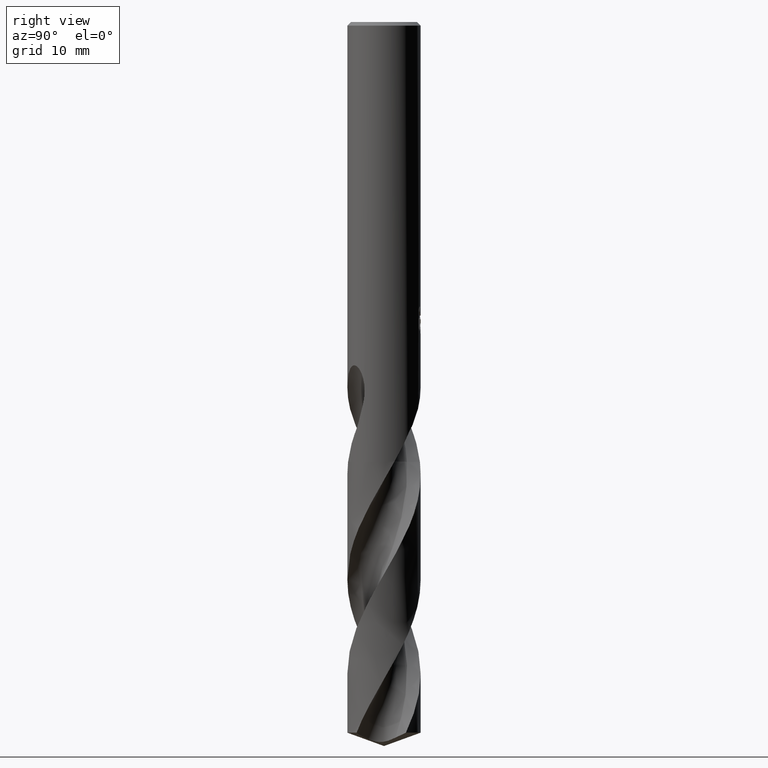
[diagram: clean part render]
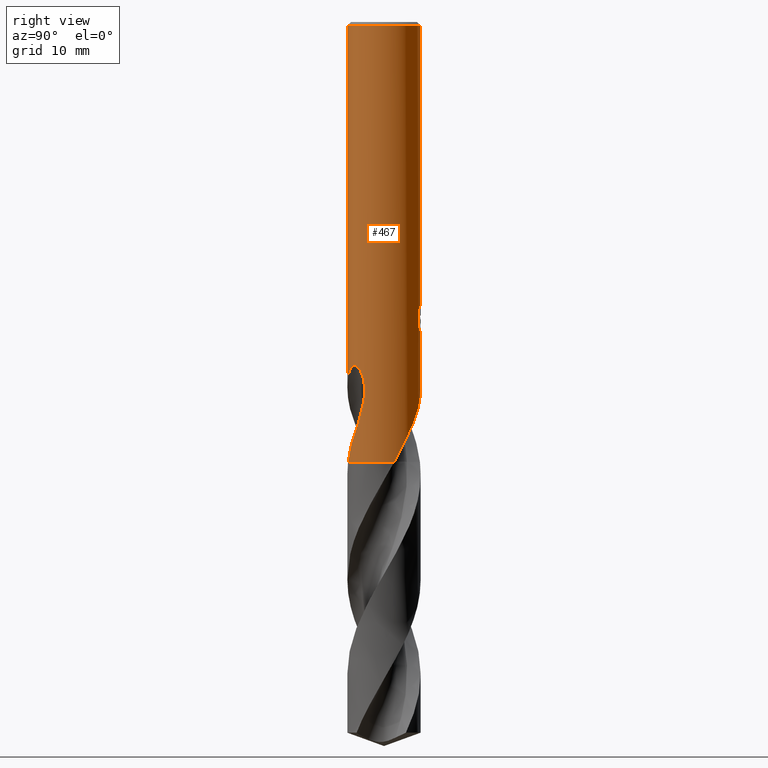
[diagram: same view with one face highlighted and labeled with its STEP entity id]
A machine part, right view. The second image highlights one B-rep face of the part: STEP entity #467.
In plain terms, the highlighted cylindrical surface (partial cylindrical patch) has radius 4 mm, axis along (-0, -0, 1).
Its self-contained STEP definition (entity closure, byte-faithful):
#269=EDGE_CURVE('',#717,#519,#760,.T.);
#271=VERTEX_POINT('',#762);
#281=VERTEX_POINT('',#773);
#313=VERTEX_POINT('',#808);
#323=VERTEX_POINT('',#820);
#337=EDGE_CURVE('',#561,#519,#834,.T.);
#357=EDGE_CURVE('',#631,#405,#854,.T.);
#359=VERTEX_POINT('',#856);
#383=EDGE_CURVE('',#439,#281,#883,.T.);
#405=VERTEX_POINT('',#907);
#431=EDGE_CURVE('',#271,#405,#935,.T.);
#439=VERTEX_POINT('',#944);
#459=EDGE_CURVE('',#561,#605,#969,.T.);
#467=ADVANCED_FACE('',(#977),#978,.T.);
#491=VERTEX_POINT('',#1007);
#509=VERTEX_POINT('',#1025);
#519=VERTEX_POINT('',#1035);
#541=VERTEX_POINT('',#1058);
#543=EDGE_CURVE('',#613,#359,#1060,.T.);
#553=VERTEX_POINT('',#1070);
#561=VERTEX_POINT('',#1078);
#581=EDGE_CURVE('',#313,#491,#1099,.T.);
#583=EDGE_CURVE('',#605,#271,#1101,.T.);
#589=EDGE_CURVE('',#359,#553,#1107,.T.);
#605=VERTEX_POINT('',#1124);
#613=VERTEX_POINT('',#1132);
#617=EDGE_CURVE('',#313,#509,#1137,.T.);
#631=VERTEX_POINT('',#1152);
#641=EDGE_CURVE('',#541,#491,#1162,.T.);
#687=EDGE_CURVE('',#509,#439,#1214,.T.);
#695=EDGE_CURVE('',#281,#323,#1222,.T.);
#713=EDGE_CURVE('',#323,#613,#1244,.T.);
#717=VERTEX_POINT('',#1249);
#719=EDGE_CURVE('',#717,#553,#1251,.T.);
#721=EDGE_CURVE('',#631,#541,#1253,.T.);
#760=CIRCLE('',#1288,4.0);
#762=CARTESIAN_POINT('',(2.78030937116489,-2.87573987012259,-44.053));
#773=CARTESIAN_POINT('',(0.873560781758956,3.90344611344549,-33.7587351791531));
#808=CARTESIAN_POINT('',(-6.37761657961682E-016,4.0,-34.0310253601033));
#820=CARTESIAN_POINT('',(1.33721006514658,3.76986329217263,-33.2901657003257));
#834=LINE('',#2195,#2196);
#854=CIRCLE('',#2234,4.0);
#856=CARTESIAN_POINT('',(0.799431726384364,3.91929954390451,-31.000000276873));
#883=LINE('',#2883,#2884);
#907=CARTESIAN_POINT('',(0.793918548138525,-3.92042004623505,-48.0));
#935=B_SPLINE_CURVE_WITH_KNOTS('',3,(#3264,#3265,#3266,#3267,#3268,#3269,#3270,#3271,#3272,#3273),.UNSPECIFIED.,.F.,.F.,(4,2,2,2,4),(0.0,1.08499727493332,2.08081364474234,3.14812656412866,4.20703552842355),.UNSPECIFIED.);
#944=CARTESIAN_POINT('',(0.873560781758957,3.90344611344549,-32.3198931596091));
#969=B_SPLINE_CURVE_WITH_KNOTS('',3,(#3611,#3612,#3613,#3614,#3615,#3616,#3617,#3618,#3619,#3620,#3621,#3622,#3623,#3624,#3625,#3626,#3627,#3628,#3629,#3630,#3631,#3632,#3633,#3634,#3635,#3636,#3637,#3638,#3639,#3640),.UNSPECIFIED.,.F.,.F.,(4,2,2,2,2,2,2,2,2,2,2,2,2,2,4),(0.0,1.9597762407695,3.02985967370596,3.99908599318602,5.1250937722548,6.47768674139874,7.65000215056726,8.18125540149219,8.56953673186899,8.93696441781943,9.40306833899536,10.0849972789282,11.0544394482058,11.6888355435201,12.3555427460073),.UNSPECIFIED.);
#977=FACE_OUTER_BOUND('',#3675,.T.);
#978=CYLINDRICAL_SURFACE('',#3676,4.0);
#1007=CARTESIAN_POINT('',(-1.18618515617536E-012,4.0,-39.8010886237942));
#1025=CARTESIAN_POINT('',(0.29010312703583,3.98946615171554,-33.9998328990228));
#1035=CARTESIAN_POINT('',(4.89842541528951E-016,-4.0,-0.399999999999999));
#1058=CARTESIAN_POINT('',(2.54885976013372,3.08274454393663,-44.053));
#1060=B_SPLINE_CURVE_WITH_KNOTS('',3,(#4098,#4099,#4100,#4101,#4102,#4103,#4104,#4105,#4106,#4107),.UNSPECIFIED.,.F.,.F.,(4,2,2,2,4),(0.621618550720989,0.932427826081483,1.24323710144198,1.55341597198189,1.8635948425218),.UNSPECIFIED.);
#1070=CARTESIAN_POINT('',(0.0,4.0,-32.0232688117743));
#1078=CARTESIAN_POINT('',(1.18285448710148E-012,-4.0,-39.8010886237942));
#1099=LINE('',#4656,#4657);
#1101=B_SPLINE_CURVE_WITH_KNOTS('',3,(#4660,#4661,#4662,#4663),.UNSPECIFIED.,.F.,.F.,(4,4),(0.0,2.29887959846367),.UNSPECIFIED.);
#1107=B_SPLINE_CURVE_WITH_KNOTS('',3,(#4670,#4671,#4672,#4673,#4674,#4675,#4676,#4677,#4678,#4679,#4680,#4681,#4682,#4683,#4684,#4685,#4686,#4687,#4688,#4689,#4690,#4691,#4692,#4693,#4694,#4695,#4696),.UNSPECIFIED.,.F.,.F.,(4,2,3,2,2,2,2,2,2,2,2,2,4),(-0.543018145553855,-0.271509072776928,0.0,0.271509072776927,0.543018145553855,0.815414280910791,1.08781041626773,1.35870467547365,1.62959893467958,1.90093601549038,2.17227309630118,2.44361017711198,2.71494725792278),.UNSPECIFIED.);
#1124=CARTESIAN_POINT('',(3.25456865325919,-2.32546401417495,-41.862679091506));
#1132=CARTESIAN_POINT('',(1.33721006514658,3.76986329217263,-31.5150484364821));
#1137=B_SPLINE_CURVE_WITH_KNOTS('',3,(#5552,#5553,#5554,#5555,#5556,#5557,#5558,#5559,#5560,#5561,#5562,#5563,#5564,#5565,#5566,#5567),.UNSPECIFIED.,.F.,.F.,(4,2,2,2,2,2,2,4),(5.59330412183837,6.21519943861119,6.52611580040833,6.83703216220547,7.14794852400261,7.45886488579976,7.76904377517712,8.07922266455448),.UNSPECIFIED.);
#1152=CARTESIAN_POINT('',(3.83967446936676,1.12111550220887,-48.0));
#1162=B_SPLINE_CURVE_WITH_KNOTS('',3,(#5756,#5757,#5758,#5759,#5760,#5761,#5762,#5763,#5764,#5765,#5766,#5767,#5768,#5769,#5770,#5771,#5772,#5773,#5774,#5775,#5776,#5777,#5778,#5779,#5780,#5781,#5782,#5783,#5784,#5785),.UNSPECIFIED.,.F.,.F.,(4,2,2,2,2,2,2,2,2,2,2,2,2,2,4),(0.0,1.95977624076947,3.02985967370601,3.99908599318628,5.12509377225497,6.47768674139893,7.65000215056745,8.18125540149243,8.56953673186918,8.93696441781958,9.40306833899562,10.0849972789289,11.0544394482072,11.6888355435218,12.3555427460094),.UNSPECIFIED.);
#1214=ELLIPSE('',#6978,12.1919782934791,4.0);
#1222=B_SPLINE_CURVE_WITH_KNOTS('',3,(#6991,#6992,#6993,#6994,#6995,#6996,#6997,#6998,#6999,#7000),.UNSPECIFIED.,.F.,.F.,(4,2,2,2,4),(8.07922159159579,8.38940045176896,8.69957931194214,9.01038857642139,9.32119784090064),.UNSPECIFIED.);
#1244=LINE('',#7092,#7093);
#1249=CARTESIAN_POINT('',(0.0,4.0,-0.399999999999999));
#1251=LINE('',#7101,#7102);
#1253=B_SPLINE_CURVE_WITH_KNOTS('',3,(#7105,#7106,#7107,#7108,#7109,#7110,#7111,#7112,#7113,#7114),.UNSPECIFIED.,.F.,.F.,(4,2,2,2,4),(0.0,2.93691293894587,4.38562282436832,6.48194882393094,10.8463161017946),.UNSPECIFIED.);
#1288=AXIS2_PLACEMENT_3D('',#7677,#7678,#7679);
#2195=CARTESIAN_POINT('',(4.89842541528951E-016,-4.0,-44.0));
#2196=VECTOR('',#7739,1.0);
#2234=AXIS2_PLACEMENT_3D('',#7744,#7745,#7746);
#2883=CARTESIAN_POINT('',(0.873560781758957,3.90344611344549,-33.0393141693811));
#2884=VECTOR('',#7774,1.0);
#3264=CARTESIAN_POINT('',(2.78030937116489,-2.87573987012259,-44.053));
#3265=CARTESIAN_POINT('',(2.65679097855428,-2.99515934476091,-44.3712519701412));
#3266=CARTESIAN_POINT('',(2.52403134467777,-3.10886386544909,-44.6838478335225));
#3267=CARTESIAN_POINT('',(2.23196085345949,-3.32392556564798,-45.2998001272732));
#3268=CARTESIAN_POINT('',(2.08493976485533,-3.41873333931412,-45.5912279914404));
#3269=CARTESIAN_POINT('',(1.74639804127306,-3.60415990677305,-46.258286404128));
#3270=CARTESIAN_POINT('',(1.56333247109181,-3.68740490220172,-46.6081532709542));
#3271=CARTESIAN_POINT('',(1.1846433942604,-3.82582550709113,-47.3067626664116));
#3272=CARTESIAN_POINT('',(0.991065521919932,-3.88049609998731,-47.6525083025429));
#3273=CARTESIAN_POINT('',(0.793918548138527,-3.92042004623505,-48.0));
#3611=CARTESIAN_POINT('',(-2.54885976013373,-3.08274454393663,-44.053));
#3612=CARTESIAN_POINT('',(-2.28500523660261,-3.30090345005828,-43.4966417767988));
#3613=CARTESIAN_POINT('',(-1.98163231588754,-3.49483155995579,-42.977936421169));
#3614=CARTESIAN_POINT('',(-1.45264038690853,-3.73253113273964,-42.1114036522165));
#3615=CARTESIAN_POINT('',(-1.26228426683797,-3.80090830680973,-41.8065283302373));
#3616=CARTESIAN_POINT('',(-0.893778878987868,-3.90310035133814,-41.2163687713546));
#3617=CARTESIAN_POINT('',(-0.717274980064561,-3.93920455800776,-40.9338353559214));
#3618=CARTESIAN_POINT('',(-0.335218398320563,-3.99131183045807,-40.3249008687613));
#3619=CARTESIAN_POINT('',(-0.12647439608519,-4.00354517408276,-39.9937333591077));
#3620=CARTESIAN_POINT('',(0.337092631504076,-3.99379417253619,-39.2852567198373));
#3621=CARTESIAN_POINT('',(0.611941054861158,-3.96363461880696,-38.8821257542007));
#3622=CARTESIAN_POINT('',(1.14195068256936,-3.84183599193105,-38.2173906398542));
#3623=CARTESIAN_POINT('',(1.43518376737336,-3.74904084478621,-37.8930259656217));
#3624=CARTESIAN_POINT('',(1.87898919238024,-3.53454780533532,-37.5892910671245));
#3625=CARTESIAN_POINT('',(2.02589175203401,-3.45357173492743,-37.5142260075858));
#3626=CARTESIAN_POINT('',(2.28329880223289,-3.28684001880263,-37.4565626198684));
#3627=CARTESIAN_POINT('',(2.38887588461982,-3.21090914700582,-37.4554859280565));
#3628=CARTESIAN_POINT('',(2.58551889986571,-3.05450740730474,-37.5059535003711));
#3629=CARTESIAN_POINT('',(2.67152074136919,-2.9789684922271,-37.5532713078944));
#3630=CARTESIAN_POINT('',(2.8465335331701,-2.81343086569157,-37.7013232644774));
#3631=CARTESIAN_POINT('',(2.92750237022739,-2.72764511666502,-37.8106329899809));
#3632=CARTESIAN_POINT('',(3.09335272716445,-2.54032566393318,-38.1099569518953));
#3633=CARTESIAN_POINT('',(3.17262589307932,-2.43831682967145,-38.3319668721969));
#3634=CARTESIAN_POINT('',(3.32169614375787,-2.233484397464,-38.953125946192));
#3635=CARTESIAN_POINT('',(3.37558848211908,-2.14623565430961,-39.3955071231947));
#3636=CARTESIAN_POINT('',(3.40226299691169,-2.10356902640446,-40.21424616535));
#3637=CARTESIAN_POINT('',(3.39599104218287,-2.1139685132873,-40.5403087544243));
#3638=CARTESIAN_POINT('',(3.35169145718829,-2.18356392775092,-41.2020529092011));
#3639=CARTESIAN_POINT('',(3.31213718412786,-2.24489483106254,-41.5352437340999));
#3640=CARTESIAN_POINT('',(3.25456865325918,-2.32546401417496,-41.862679091506));
#3675=EDGE_LOOP('',(#7888,#7889,#7890,#7891,#7892,#7893,#7894,#7895,#7896,#7897,#7898,#7899,#7900,#7901,#7902,#7903,#7904));
#3676=AXIS2_PLACEMENT_3D('',#7905,#7906,#7907);
#4098=CARTESIAN_POINT('',(1.47492143493287,3.71814560779639,-31.7759604553563));
#4099=CARTESIAN_POINT('',(1.43317985453682,3.73470372211652,-31.6758249567768));
#4100=CARTESIAN_POINT('',(1.38139934199221,3.7544274523428,-31.5801212011595));
#4101=CARTESIAN_POINT('',(1.26216864159784,3.79617175011376,-31.4033868968692));
#4102=CARTESIAN_POINT('',(1.1947060468711,3.8181497487877,-31.3223546663791));
#4103=CARTESIAN_POINT('',(1.0513319169546,3.86008660392055,-31.1790629248092));
#4104=CARTESIAN_POINT('',(0.970367433401024,3.88157055479408,-31.1117010969221));
#4105=CARTESIAN_POINT('',(0.793686081906958,3.92151314302242,-30.9925943353462));
#4106=CARTESIAN_POINT('',(0.697967348067752,3.93993643158254,-30.9408403180509));
#4107=CARTESIAN_POINT('',(0.597825544213158,3.95507327601983,-30.8991318677171));
#4656=CARTESIAN_POINT('',(-4.89842541528951E-016,4.0,-44.0));
#4657=VECTOR('',#8013,1.0);
#4660=CARTESIAN_POINT('',(3.2545686533118,-2.32546401410131,-41.862679091535));
#4661=CARTESIAN_POINT('',(3.12561195037748,-2.50594345410102,-42.5961657022424));
#4662=CARTESIAN_POINT('',(2.9701846549125,-2.69216553635172,-43.3340172614407));
#4663=CARTESIAN_POINT('',(2.78030937116489,-2.87573987012259,-44.053));
#4670=CARTESIAN_POINT('',(0.665279195004375,3.9442874632428,-30.8137529884524));
#4671=CARTESIAN_POINT('',(0.72877088492158,3.9335783806135,-30.8773526603125));
#4672=CARTESIAN_POINT('',(0.783944488018489,3.92260552826083,-30.957920893425));
#4673=CARTESIAN_POINT('',(0.857267073993339,3.90723639918054,-31.134802544027));
#4674=CARTESIAN_POINT('',(0.875400981188567,3.90303383563787,-31.2311389883278));
#4675=CARTESIAN_POINT('',(0.875400981188567,3.90303383563787,-31.3216420125868));
#4676=CARTESIAN_POINT('',(0.875400981188567,3.90303383563787,-31.4121450368458));
#4677=CARTESIAN_POINT('',(0.857267073993339,3.90723639918054,-31.5084814811466));
#4678=CARTESIAN_POINT('',(0.783944488018488,3.92260552826083,-31.6853631317485));
#4679=CARTESIAN_POINT('',(0.728770884921581,3.9335783806135,-31.765931364861));
#4680=CARTESIAN_POINT('',(0.601580067811904,3.95503153411898,-31.8933384986505));
#4681=CARTESIAN_POINT('',(0.520902117238449,3.96693827151805,-31.9487071231089));
#4682=CARTESIAN_POINT('',(0.343752086871948,3.98619778335453,-32.0223037477669));
#4683=CARTESIAN_POINT('',(0.247255556938652,3.99338316413851,-32.0405166027747));
#4684=CARTESIAN_POINT('',(0.0662974670001867,4.00046977119903,-32.0405166027747));
#4685=CARTESIAN_POINT('',(-0.0299674229107091,4.00086780861984,-32.0224830783564));
#4686=CARTESIAN_POINT('',(-0.206991592502204,3.99562207288533,-31.9491870835923));
#4687=CARTESIAN_POINT('',(-0.287758268875903,3.99014940483369,-31.8939303320089));
#4688=CARTESIAN_POINT('',(-0.415384305359873,3.97889009382894,-31.7664425414649));
#4689=CARTESIAN_POINT('',(-0.470753835570468,3.9723749730993,-31.6856442592887));
#4690=CARTESIAN_POINT('',(-0.544239101864661,3.96297563900076,-31.5084730190186));
#4691=CARTESIAN_POINT('',(-0.562348199187247,3.96027328638705,-31.4120877061904));
#4692=CARTESIAN_POINT('',(-0.562348199187247,3.96027328638705,-31.2311963189832));
#4693=CARTESIAN_POINT('',(-0.544239101864661,3.96297563900076,-31.134811006155));
#4694=CARTESIAN_POINT('',(-0.470753835570468,3.9723749730993,-30.9576397658849));
#4695=CARTESIAN_POINT('',(-0.415384305359873,3.97889009382894,-30.8768414837086));
#4696=CARTESIAN_POINT('',(-0.351519173230209,3.98452434687649,-30.8130455309993));
#5552=CARTESIAN_POINT('',(-1.53169074080201,3.69512157777541,-33.0291469804961));
#5553=CARTESIAN_POINT('',(-1.44828662161398,3.72969396308271,-33.2292685117474));
#5554=CARTESIAN_POINT('',(-1.3235119204923,3.77766697431007,-33.4106519059977));
#5555=CARTESIAN_POINT('',(-1.10876972720289,3.84398770228913,-33.6255223555534));
#5556=CARTESIAN_POINT('',(-1.02784628500841,3.86675406900514,-33.6929304922165));
#5557=CARTESIAN_POINT('',(-0.851215741256186,3.9094356085587,-33.8121513963803));
#5558=CARTESIAN_POINT('',(-0.755506440008018,3.92931563110609,-33.8639734861066));
#5559=CARTESIAN_POINT('',(-0.55516132520436,3.96258844897707,-33.9475385932463));
#5560=CARTESIAN_POINT('',(-0.450345578096092,3.97598591776774,-33.9793474763458));
#5561=CARTESIAN_POINT('',(-0.238765831475676,3.99427916347003,-34.0212208804589));
#5562=CARTESIAN_POINT('',(-0.131998351317953,3.99916459194608,-34.0312723335086));
#5563=CARTESIAN_POINT('',(0.0750281946656646,4.00063255933723,-34.0312723335086));
#5564=CARTESIAN_POINT('',(0.181611397509719,3.99727906083033,-34.0212676362976));
#5565=CARTESIAN_POINT('',(0.392937729655654,3.98206259750675,-33.9795209106323));
#5566=CARTESIAN_POINT('',(0.497684032548134,3.97021008398904,-33.9477911393989));
#5567=CARTESIAN_POINT('',(0.597825841435798,3.9550732310934,-33.9060826866649));
#5756=CARTESIAN_POINT('',(2.54885976013372,3.08274454393663,-44.053));
#5757=CARTESIAN_POINT('',(2.28500523660261,3.30090345005828,-43.4966417767988));
#5758=CARTESIAN_POINT('',(1.98163231588755,3.49483155995579,-42.977936421169));
#5759=CARTESIAN_POINT('',(1.45264038690851,3.73253113273964,-42.1114036522164));
#5760=CARTESIAN_POINT('',(1.26228426683794,3.80090830680974,-41.8065283302372));
#5761=CARTESIAN_POINT('',(0.893778878987872,3.90310035133813,-41.2163687713547));
#5762=CARTESIAN_POINT('',(0.717274980064568,3.93920455800775,-40.9338353559214));
#5763=CARTESIAN_POINT('',(0.33521839832061,3.99131183045806,-40.3249008687614));
#5764=CARTESIAN_POINT('',(0.126474396085212,4.00354517408276,-39.9937333591078));
#5765=CARTESIAN_POINT('',(-0.337092631504132,3.99379417253619,-39.2852567198373));
#5766=CARTESIAN_POINT('',(-0.611941054861174,3.96363461880695,-38.8821257542007));
#5767=CARTESIAN_POINT('',(-1.14195068256935,3.84183599193105,-38.2173906398542));
#5768=CARTESIAN_POINT('',(-1.43518376737336,3.74904084478621,-37.8930259656217));
#5769=CARTESIAN_POINT('',(-1.87898919238026,3.53454780533531,-37.5892910671245));
#5770=CARTESIAN_POINT('',(-2.02589175203402,3.45357173492742,-37.5142260075858));
#5771=CARTESIAN_POINT('',(-2.28329880223286,3.28684001880265,-37.4565626198684));
#5772=CARTESIAN_POINT('',(-2.38887588461981,3.21090914700583,-37.4554859280565));
#5773=CARTESIAN_POINT('',(-2.58551889986573,3.05450740730473,-37.5059535003711));
#5774=CARTESIAN_POINT('',(-2.67152074136922,2.97896849222708,-37.5532713078944));
#5775=CARTESIAN_POINT('',(-2.8465335331701,2.81343086569157,-37.7013232644774));
#5776=CARTESIAN_POINT('',(-2.92750237022738,2.72764511666503,-37.8106329899809));
#5777=CARTESIAN_POINT('',(-3.09335272716449,2.54032566393313,-38.1099569518954));
#5778=CARTESIAN_POINT('',(-3.17262589307935,2.43831682967142,-38.331966872197));
#5779=CARTESIAN_POINT('',(-3.32169614375785,2.23348439746403,-38.953125946192));
#5780=CARTESIAN_POINT('',(-3.37558848211908,2.14623565430961,-39.3955071231946));
#5781=CARTESIAN_POINT('',(-3.40226299691169,2.10356902640446,-40.21424616535));
#5782=CARTESIAN_POINT('',(-3.39599104218287,2.1139685132873,-40.5403087544243));
#5783=CARTESIAN_POINT('',(-3.35169145718829,2.18356392775092,-41.2020529092011));
#5784=CARTESIAN_POINT('',(-3.31213718412787,2.24489483106254,-41.5352437340999));
#5785=CARTESIAN_POINT('',(-3.25456865325918,2.32546401417496,-41.862679091506));
#6978=AXIS2_PLACEMENT_3D('',#8099,#8100,#8101);
#6991=CARTESIAN_POINT('',(0.597825566619951,3.95507327263295,-33.9060822529338));
#6992=CARTESIAN_POINT('',(0.69796736707036,3.93993642812991,-33.8643738039892));
#6993=CARTESIAN_POINT('',(0.793686097648071,3.92151313976681,-33.8126197884223));
#6994=CARTESIAN_POINT('',(0.970367443122637,3.8815705522933,-33.6935130308195));
#6995=CARTESIAN_POINT('',(1.05133192391794,3.86008660197544,-33.6261512051772));
#6996=CARTESIAN_POINT('',(1.19470604884202,3.81814974811935,-33.4828594684698));
#6997=CARTESIAN_POINT('',(1.26216864117972,3.79617175021539,-33.401827240791));
#6998=CARTESIAN_POINT('',(1.38139933735972,3.75442745400946,-33.2250929426288));
#6999=CARTESIAN_POINT('',(1.43317984807825,3.73470372457547,-33.1293891903286));
#7000=CARTESIAN_POINT('',(1.47492142700079,3.7181456109429,-33.0292536952238));
#7092=CARTESIAN_POINT('',(1.33721006514658,3.76986329217263,-32.4026070684039));
#7093=VECTOR('',#8150,1.0);
#7101=CARTESIAN_POINT('',(-4.89842541528951E-016,4.0,-44.0));
#7102=VECTOR('',#8159,1.0);
#7105=CARTESIAN_POINT('',(3.83967446936676,1.12111550220888,-48.0));
#7106=CARTESIAN_POINT('',(3.70247878393256,1.59099284279606,-47.1521929419408));
#7107=CARTESIAN_POINT('',(3.50594392449684,1.94350801631814,-46.4946777649929));
#7108=CARTESIAN_POINT('',(3.29392167164309,2.27306767590815,-45.7892184298547));
#7109=CARTESIAN_POINT('',(3.2440088274173,2.34304447379938,-45.6147965451847));
#7110=CARTESIAN_POINT('',(3.07124210167386,2.56819708251596,-45.0841903887949));
#7111=CARTESIAN_POINT('',(2.99783006127853,2.64940410214403,-44.9035183727014));
#7112=CARTESIAN_POINT('',(2.83186929282466,2.82983048086219,-44.524466256765));
#7113=CARTESIAN_POINT('',(2.7015615265768,2.95648841656674,-44.2842959192698));
#7114=CARTESIAN_POINT('',(2.54885976013372,3.08274454393663,-44.053));
#7677=CARTESIAN_POINT('',(0.0,0.0,-0.399999999999999));
#7678=DIRECTION('',(0.0,0.0,-1.0));
#7679=DIRECTION('',(0.0,1.0,0.0));
#7739=DIRECTION('',(-0.0,-0.0,1.0));
#7744=CARTESIAN_POINT('',(0.0,0.0,-48.0));
#7745=DIRECTION('',(0.0,0.0,-1.0));
#7746=DIRECTION('',(0.0,1.0,0.0));
#7774=DIRECTION('',(0.0,0.0,-1.0));
#7888=ORIENTED_EDGE('',*,*,#719,.F.);
#7889=ORIENTED_EDGE('',*,*,#269,.T.);
#7890=ORIENTED_EDGE('',*,*,#337,.F.);
#7891=ORIENTED_EDGE('',*,*,#459,.T.);
#7892=ORIENTED_EDGE('',*,*,#583,.T.);
#7893=ORIENTED_EDGE('',*,*,#431,.T.);
#7894=ORIENTED_EDGE('',*,*,#357,.F.);
#7895=ORIENTED_EDGE('',*,*,#721,.T.);
#7896=ORIENTED_EDGE('',*,*,#641,.T.);
#7897=ORIENTED_EDGE('',*,*,#581,.F.);
#7898=ORIENTED_EDGE('',*,*,#617,.T.);
#7899=ORIENTED_EDGE('',*,*,#687,.T.);
#7900=ORIENTED_EDGE('',*,*,#383,.T.);
#7901=ORIENTED_EDGE('',*,*,#695,.T.);
#7902=ORIENTED_EDGE('',*,*,#713,.T.);
#7903=ORIENTED_EDGE('',*,*,#543,.T.);
#7904=ORIENTED_EDGE('',*,*,#589,.T.);
#7905=CARTESIAN_POINT('',(0.0,0.0,-44.0));
#7906=DIRECTION('',(-0.0,-0.0,1.0));
#7907=DIRECTION('',(0.0,1.0,0.0));
#8013=DIRECTION('',(0.0,0.0,-1.0));
#8099=CARTESIAN_POINT('',(0.0,0.0,-34.8351219173269));
#8100=DIRECTION('',(0.944648353914092,0.0,-0.328084573619969));
#8101=DIRECTION('',(0.328084573619968,-0.0,0.944648353914092));
#8150=DIRECTION('',(-0.0,-0.0,1.0));
#8159=DIRECTION('',(0.0,0.0,-1.0));